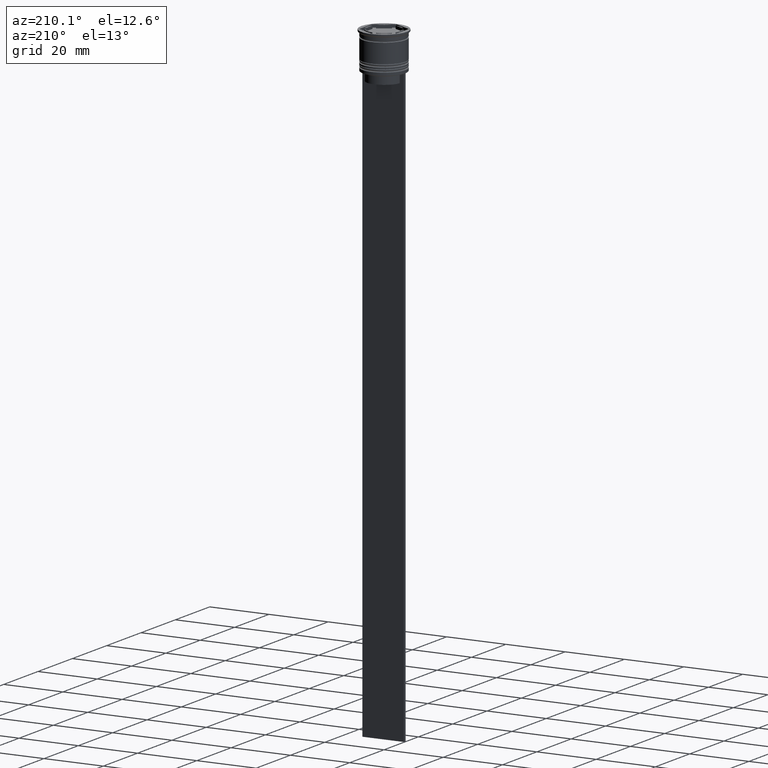
[diagram: clean part render]
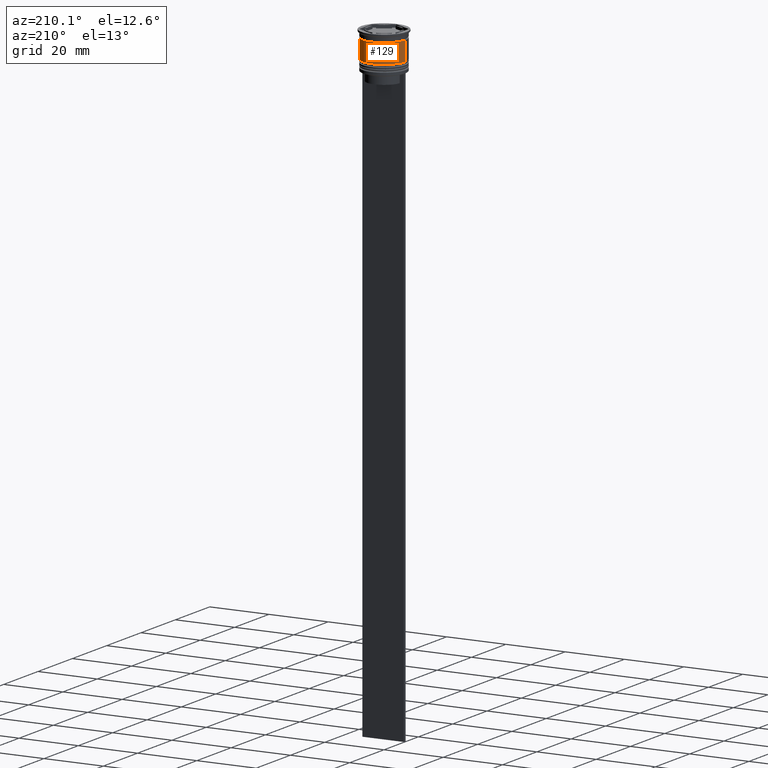
[diagram: same view with one face highlighted and labeled with its STEP entity id]
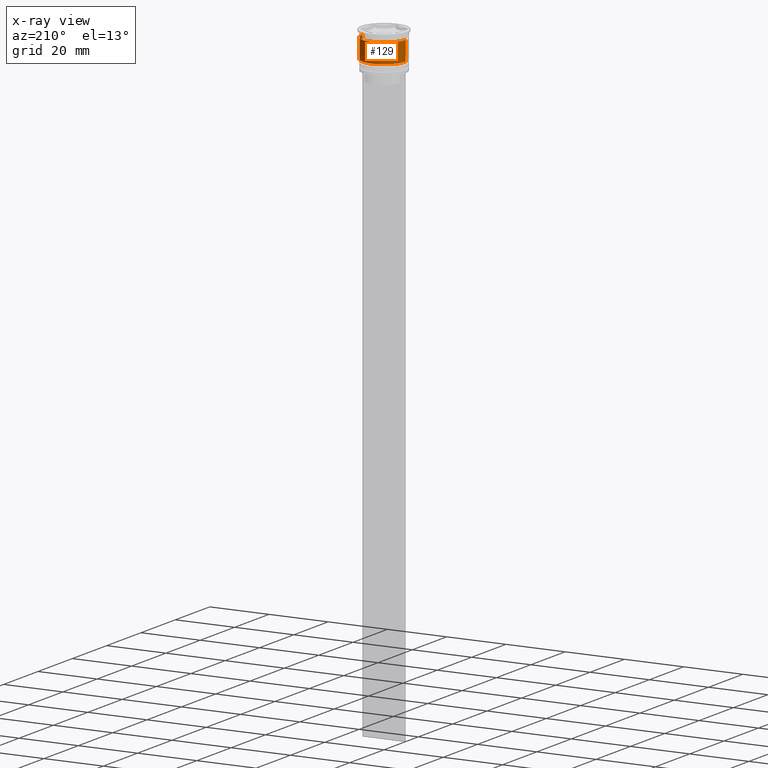
[diagram: x-ray of the same camera — body ghosted, the highlighted face saturated]
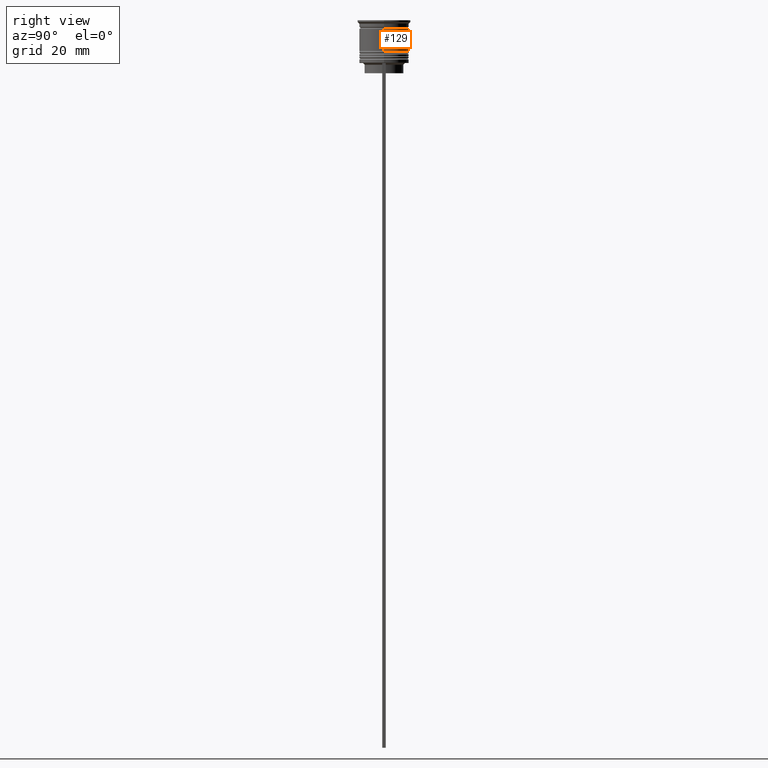
[diagram: same view with one face highlighted and labeled with its STEP entity id]
A machine part, auxiliary view. The second image highlights one B-rep face of the part: STEP entity #129.
The next image is the same camera in x-ray: the body ghosted, the highlighted face saturated — about 0% of this face is hidden behind the body in this view.
A second angle (right view) of the same face is appended — the face is thin or edge-on in the first view.
In plain terms, the highlighted cylindrical surface (edge-blend (fillet) strip) has radius 7.25 mm, axis along (-0, -0, 1).
Its self-contained STEP definition (entity closure, byte-faithful):
#2 = CARTESIAN_POINT ( 'NONE',  ( -7.250000000000000888, 8.878689293818312046E-16, -9.000000000000001776 ) ) ;
#12 = AXIS2_PLACEMENT_3D ( 'NONE', #928, #2191, #1288 ) ;
#54 = VERTEX_POINT ( 'NONE', #2 ) ;
#99 = EDGE_CURVE ( 'NONE', #445, #2092, #1295, .T. ) ;
#127 = EDGE_CURVE ( 'NONE', #1007, #54, #240, .T. ) ;
#129 = ADVANCED_FACE ( 'NONE', ( #2159 ), #227, .T. ) ;
#173 = ORIENTED_EDGE ( 'NONE', *, *, #127, .T. ) ;
#227 = CYLINDRICAL_SURFACE ( 'NONE', #728, 7.249999999999999112 ) ;
#240 = CIRCLE ( 'NONE', #12, 7.250000000000000888 ) ;
#330 = EDGE_LOOP ( 'NONE', ( #173, #2334, #2318, #1220 ) ) ;
#381 = LINE ( 'NONE', #1640, #1115 ) ;
#426 = CARTESIAN_POINT ( 'NONE',  ( 7.249999999999999112, 0.000000000000000000, 0.000000000000000000 ) ) ;
#445 = VERTEX_POINT ( 'NONE', #1816 ) ;
#728 = AXIS2_PLACEMENT_3D ( 'NONE', #2014, #939, #756 ) ;
#735 = DIRECTION ( 'NONE',  ( 1.000000000000000000, 0.000000000000000000, 0.000000000000000000 ) ) ;
#746 = CARTESIAN_POINT ( 'NONE',  ( 0.000000000000000000, 0.000000000000000000, -2.500000000000000444 ) ) ;
#756 = DIRECTION ( 'NONE',  ( 1.000000000000000000, 0.000000000000000000, 0.000000000000000000 ) ) ;
#757 = LINE ( 'NONE', #426, #889 ) ;
#759 = DIRECTION ( 'NONE',  ( -0.000000000000000000, -0.000000000000000000, 1.000000000000000000 ) ) ;
#889 = VECTOR ( 'NONE', #1480, 1000.000000000000000 ) ;
#928 = CARTESIAN_POINT ( 'NONE',  ( 0.000000000000000000, 0.000000000000000000, -9.000000000000001776 ) ) ;
#939 = DIRECTION ( 'NONE',  ( -0.000000000000000000, -0.000000000000000000, 1.000000000000000000 ) ) ;
#1007 = VERTEX_POINT ( 'NONE', #2067 ) ;
#1034 = AXIS2_PLACEMENT_3D ( 'NONE', #746, #1479, #735 ) ;
#1115 = VECTOR ( 'NONE', #759, 1000.000000000000000 ) ;
#1220 = ORIENTED_EDGE ( 'NONE', *, *, #2082, .F. ) ;
#1288 = DIRECTION ( 'NONE',  ( 1.000000000000000000, 0.000000000000000000, 0.000000000000000000 ) ) ;
#1295 = CIRCLE ( 'NONE', #1034, 7.249999999999997335 ) ;
#1479 = DIRECTION ( 'NONE',  ( -0.000000000000000000, -0.000000000000000000, 1.000000000000000000 ) ) ;
#1480 = DIRECTION ( 'NONE',  ( -0.000000000000000000, -0.000000000000000000, 1.000000000000000000 ) ) ;
#1513 = EDGE_CURVE ( 'NONE', #54, #2092, #381, .T. ) ;
#1640 = CARTESIAN_POINT ( 'NONE',  ( -7.249999999999999112, 8.878689293818310074E-16, 0.000000000000000000 ) ) ;
#1816 = CARTESIAN_POINT ( 'NONE',  ( 7.249999999999997335, 0.000000000000000000, -2.500000000000000444 ) ) ;
#2014 = CARTESIAN_POINT ( 'NONE',  ( 0.000000000000000000, 0.000000000000000000, 0.000000000000000000 ) ) ;
#2067 = CARTESIAN_POINT ( 'NONE',  ( 7.250000000000000888, 0.000000000000000000, -9.000000000000001776 ) ) ;
#2082 = EDGE_CURVE ( 'NONE', #1007, #445, #757, .T. ) ;
#2092 = VERTEX_POINT ( 'NONE', #2230 ) ;
#2159 = FACE_OUTER_BOUND ( 'NONE', #330, .T. ) ;
#2191 = DIRECTION ( 'NONE',  ( -0.000000000000000000, -0.000000000000000000, 1.000000000000000000 ) ) ;
#2230 = CARTESIAN_POINT ( 'NONE',  ( -7.249999999999997335, 8.878689293818308102E-16, -2.500000000000000444 ) ) ;
#2318 = ORIENTED_EDGE ( 'NONE', *, *, #99, .F. ) ;
#2334 = ORIENTED_EDGE ( 'NONE', *, *, #1513, .T. ) ;